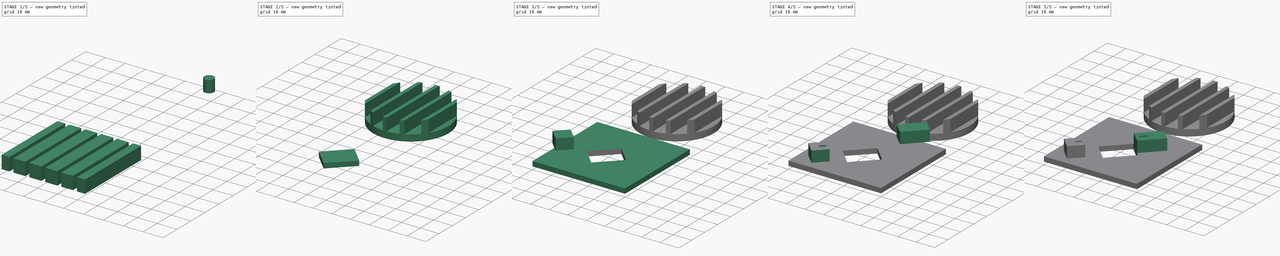
[diagram: build sequence overview — one tinted view per stage of 5, left to right]
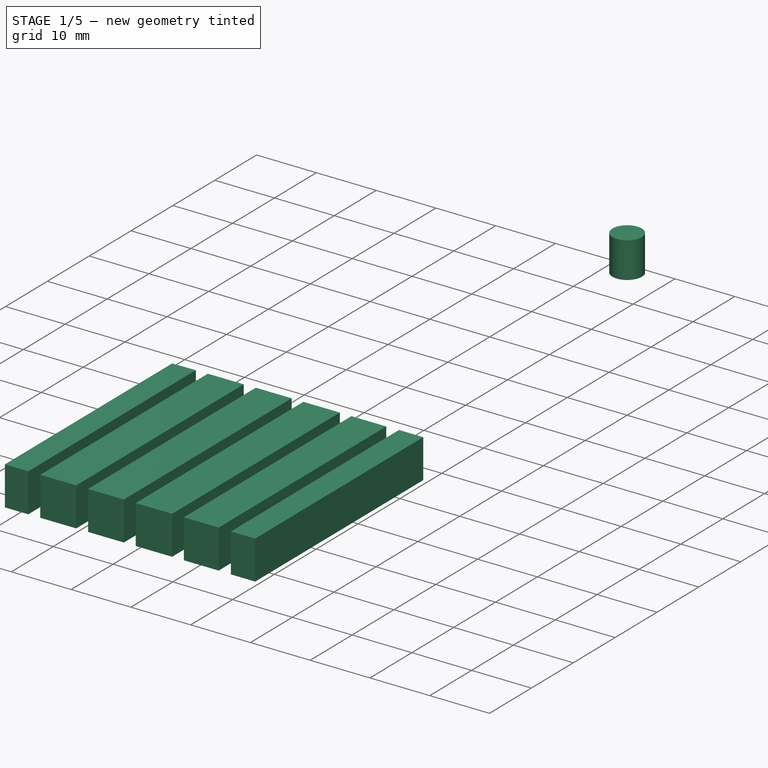
[diagram: stage 1 of 5 — iso view after this stage's code; geometry added in this stage tinted green]
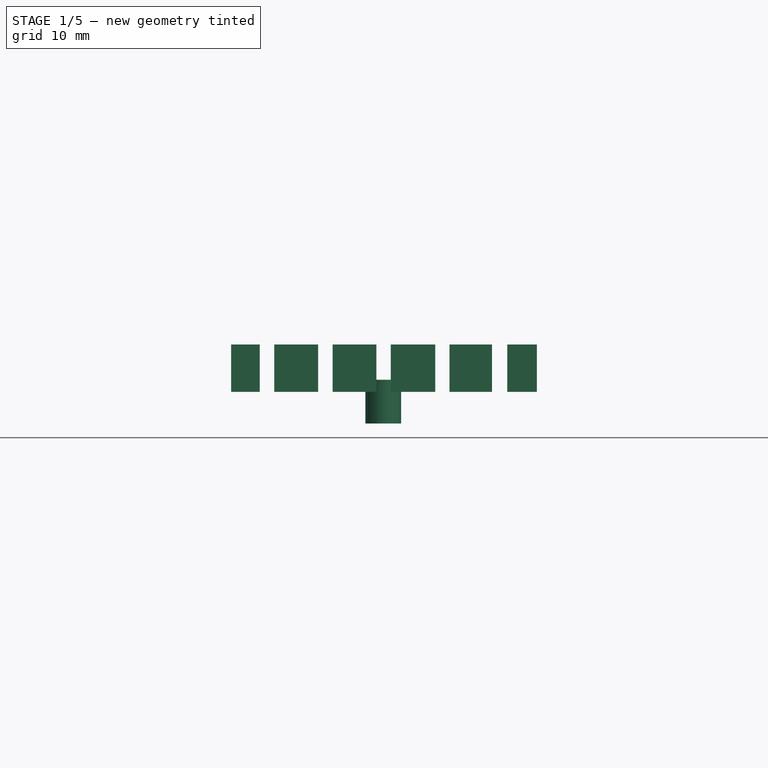
[diagram: stage 1 of 5 — front view after this stage's code; geometry added in this stage tinted green]
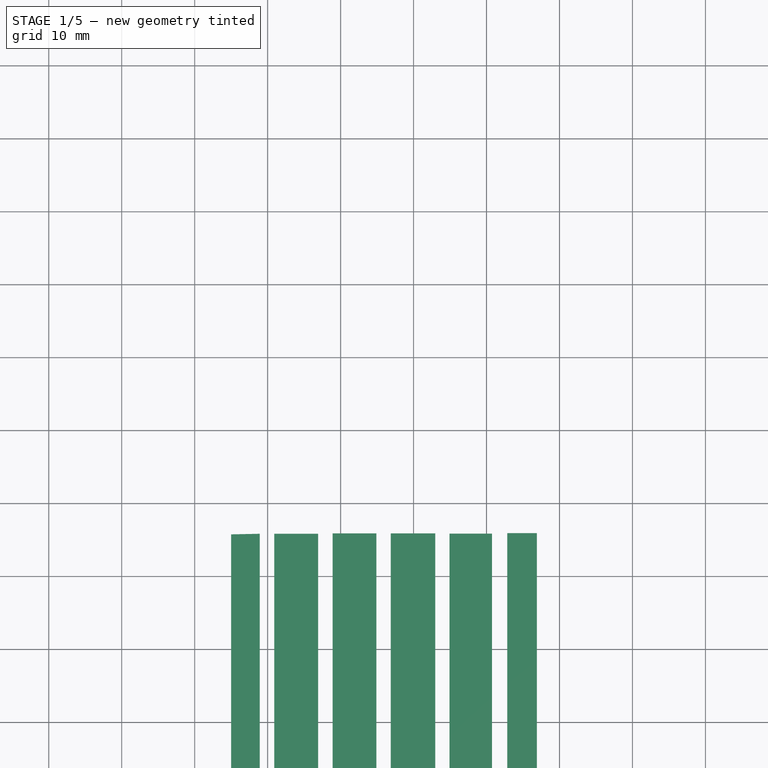
[diagram: stage 1 of 5 — top view after this stage's code; geometry added in this stage tinted green]
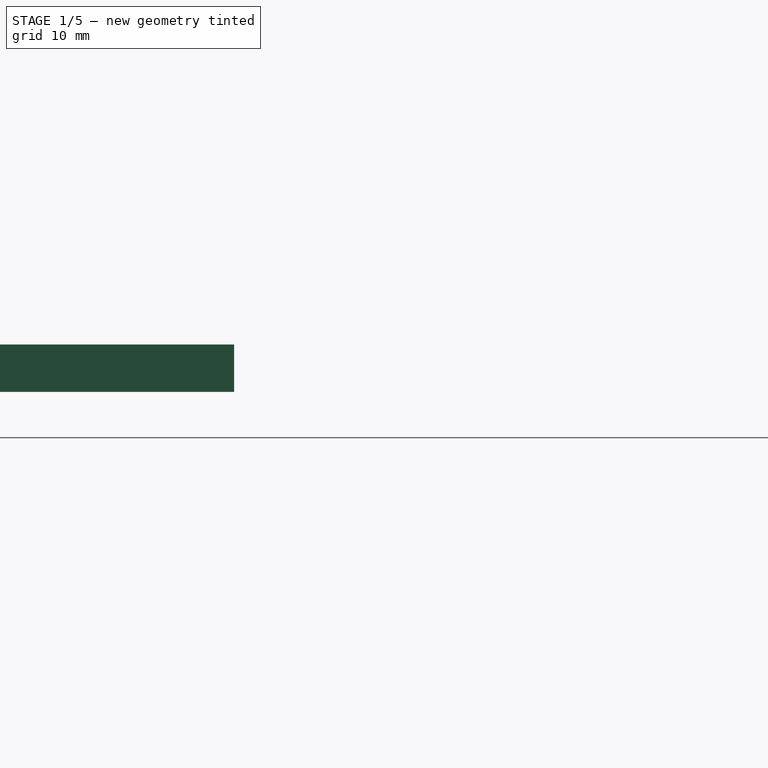
[diagram: stage 1 of 5 — right view after this stage's code; geometry added in this stage tinted green]
FCSTD DOCUMENT  (FreeCAD 0.21R33694 (Git))
Label: new_wall_maze_v13
License: All rights reserved
LicenseURL: https://en.wikipedia.org/wiki/All_rights_reserved
objects: Part::Cut×5, Part::Box×4, Sketcher::SketchObject×4, Part::Extrusion×4, Part::Cylinder×1, Part::MultiFuse×1
note: 19 computed .brp shape members not serialized (recipe doc carries the construction recipe); baked Part::Feature solids carry a one-line shape summary decoded from their .brp

FEATURE [Part::Cylinder] Cylinder001
  Angle = 360
  AttacherType = Attacher::AttachEngine3D
  FirstAngle = 0
  Height = 10
  Placement = pos=(25.88,-24.43,1.58) rot=(0,0,1;0rad)
  Radius = 20
  SecondAngle = 0
FEATURE [Sketcher::SketchObject] Sketch001
  FullyConstrained = false
  MapMode = 2
  Placement = pos=(25.88,-24.43,1.58) rot=(0,0,1;0rad)
  Support = -> [Cylinder001]
  sketch-geometry (24):
    g0: LineSegment StartX=0.997806 StartY=-19.954 StartZ=0 EndX=7.08607 EndY=-19.954 EndZ=0
    g1: LineSegment StartX=7.08607 StartY=-19.954 StartZ=0 EndX=7.08607 EndY=20.1182 EndZ=0
    g2: LineSegment StartX=7.08607 StartY=20.1182 StartZ=0 EndX=0.997806 EndY=20.1182 EndZ=0
    g3: LineSegment StartX=0.997806 StartY=20.1182 StartZ=0 EndX=0.997806 EndY=-19.954 EndZ=0
    g4: LineSegment StartX=9.0524 StartY=-19.954 StartZ=0 EndX=14.8749 EndY=-19.954 EndZ=0
    g5: LineSegment StartX=14.8749 StartY=-19.954 StartZ=0 EndX=14.8749 EndY=20.084 EndZ=0
    g6: LineSegment StartX=14.8749 StartY=20.084 StartZ=0 EndX=9.0524 EndY=20.084 EndZ=0
    g7: LineSegment StartX=9.0524 StartY=20.084 StartZ=0 EndX=9.0524 EndY=-19.954 EndZ=0
    g8: LineSegment StartX=-0.983581 StartY=-19.954 StartZ=0 EndX=-6.97504 EndY=-19.954 EndZ=0
    g9: LineSegment StartX=-6.97504 StartY=-19.954 StartZ=0 EndX=-6.97504 EndY=20.1272 EndZ=0
    g10: LineSegment StartX=-6.97504 StartY=20.1272 StartZ=0 EndX=-0.983581 EndY=20.1272 EndZ=0
    g11: LineSegment StartX=-0.983581 StartY=20.1272 StartZ=0 EndX=-0.983581 EndY=-19.954 EndZ=0
    g12: LineSegment StartX=-8.96314 StartY=-19.954 StartZ=0 EndX=-14.9716 EndY=-19.954 EndZ=0
    g13: LineSegment StartX=-14.9716 StartY=-19.954 StartZ=0 EndX=-14.9716 EndY=20.0763 EndZ=0
    g14: LineSegment StartX=-14.9716 StartY=20.0763 StartZ=0 EndX=-8.96314 EndY=20.0763 EndZ=0
    g15: LineSegment StartX=-8.96314 StartY=20.0763 StartZ=0 EndX=-8.96314 EndY=-19.954 EndZ=0
    g16: LineSegment StartX=16.9644 StartY=20.1567 StartZ=0 EndX=21.0191 EndY=20.1567 EndZ=0
    g17: LineSegment StartX=21.0191 StartY=20.1567 StartZ=0 EndX=21.0191 EndY=-20.0109 EndZ=0
    g18: LineSegment StartX=21.0191 StartY=-20.0109 StartZ=0 EndX=16.9644 EndY=-20.0109 EndZ=0
    g19: LineSegment StartX=16.9644 StartY=-20.0109 StartZ=0 EndX=16.9644 EndY=20.1567 EndZ=0
    g20: LineSegment StartX=-16.9652 StartY=20.0719 StartZ=0 EndX=-16.9652 EndY=-19.9718 EndZ=0
    g21: LineSegment StartX=-16.9652 StartY=-19.9718 StartZ=0 EndX=-20.8833 EndY=-19.9718 EndZ=0
    g22: LineSegment StartX=-20.8833 StartY=-19.9718 StartZ=0 EndX=-20.8833 EndY=19.9916 EndZ=0
    g23: LineSegment StartX=-20.8833 StartY=19.9916 StartZ=0 EndX=-16.9652 EndY=20.0719 EndZ=0
  constraints (47):
    c: Coincident(g0,g1)
    c: Coincident(g1,g2)
    c: Coincident(g2,g3)
    c: Coincident(g3,g0)
    c: Horizontal(g0)
    c: Horizontal(g2)
    c: Vertical(g1)
    c: Vertical(g3)
    c: Coincident(g4,g5)
    c: Coincident(g5,g6)
    c: Coincident(g6,g7)
    c: Coincident(g7,g4)
    c: Horizontal(g4)
    c: Horizontal(g6)
    c: Vertical(g5)
    c: Vertical(g7)
    c: Coincident(g8,g9)
    c: Coincident(g9,g10)
    c: Coincident(g10,g11)
    c: Coincident(g11,g8)
    c: Horizontal(g8)
    c: Horizontal(g10)
    c: Vertical(g9)
    c: Vertical(g11)
    c: Coincident(g12,g13)
    c: Coincident(g13,g14)
    c: Coincident(g14,g15)
    c: Coincident(g15,g12)
    c: Horizontal(g12)
    c: Horizontal(g14)
    c: Vertical(g13)
    c: Vertical(g15)
    c: Horizontal(g16)
    c: Coincident(g17,g16)
    c: Vertical(g17)
    c: Coincident(g18,g17)
    c: Horizontal(g18)
    c: Coincident(g19,g18)
    c: Coincident(g19,g16)
    c: Vertical(g19)
    c: Vertical(g20)
    c: Coincident(g21,g20)
    c: Horizontal(g21)
    c: Coincident(g22,g21)
    c: Vertical(g22)
    c: Coincident(g23,g22)
    c: Coincident(g23,g20)
FEATURE [Part::Extrusion] Extrude
  Base = -> Sketch001
  Dir = (0,0,1)
  DirMode = 2
  FaceMakerClass = Part::FaceMakerBullseye
  LengthFwd = 6.5
  LengthRev = 0
  Solid = true
  Symmetric = false
FEATURE [Part::Extrusion] Extrude001
  Base = -> Sketch002
  Dir = (0,0,1)
  DirMode = 2
  FaceMakerClass = Part::FaceMakerBullseye
  LengthFwd = 6
  LengthRev = 0
  Placement = pos=(0,0,-2.75) rot=(0,0,1;0rad)
  Solid = true
  Symmetric = false
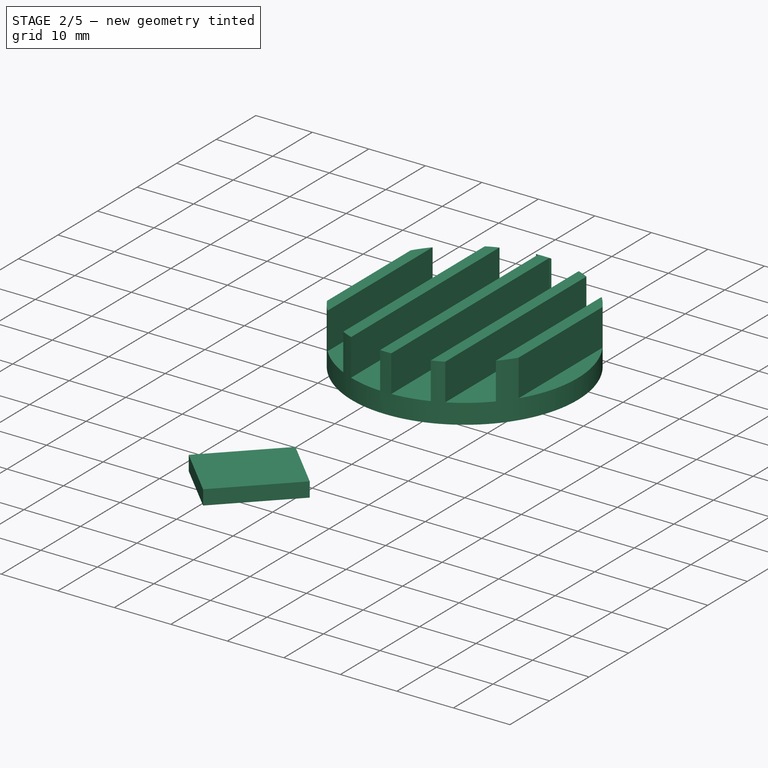
[diagram: stage 2 of 5 — iso view after this stage's code; geometry added in this stage tinted green]
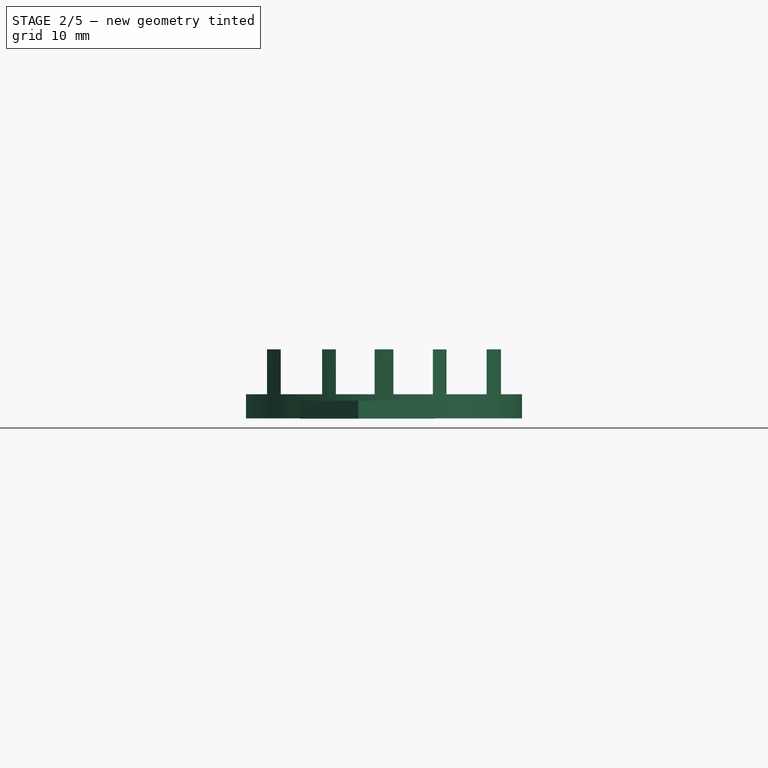
[diagram: stage 2 of 5 — front view after this stage's code; geometry added in this stage tinted green]
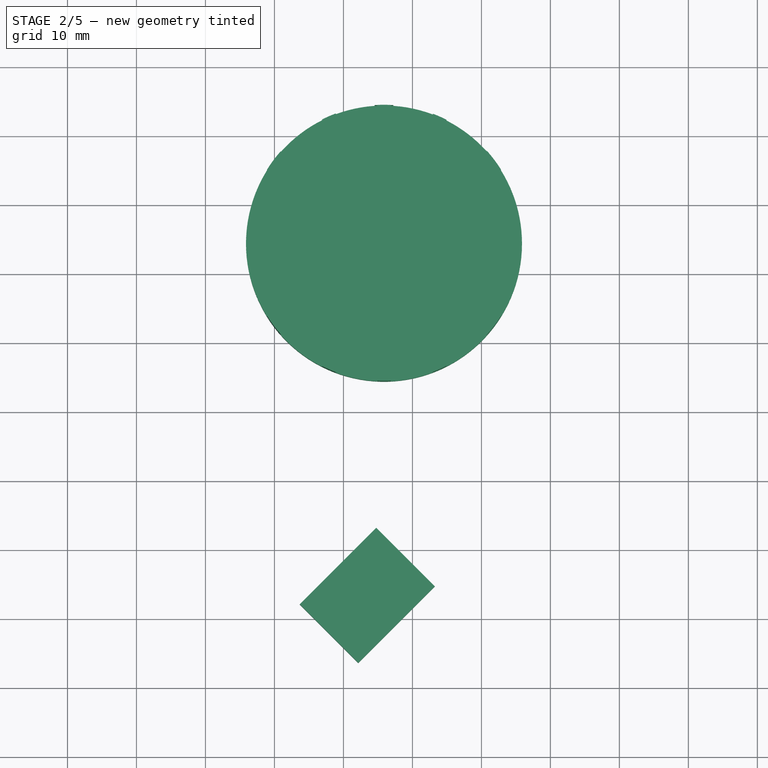
[diagram: stage 2 of 5 — top view after this stage's code; geometry added in this stage tinted green]
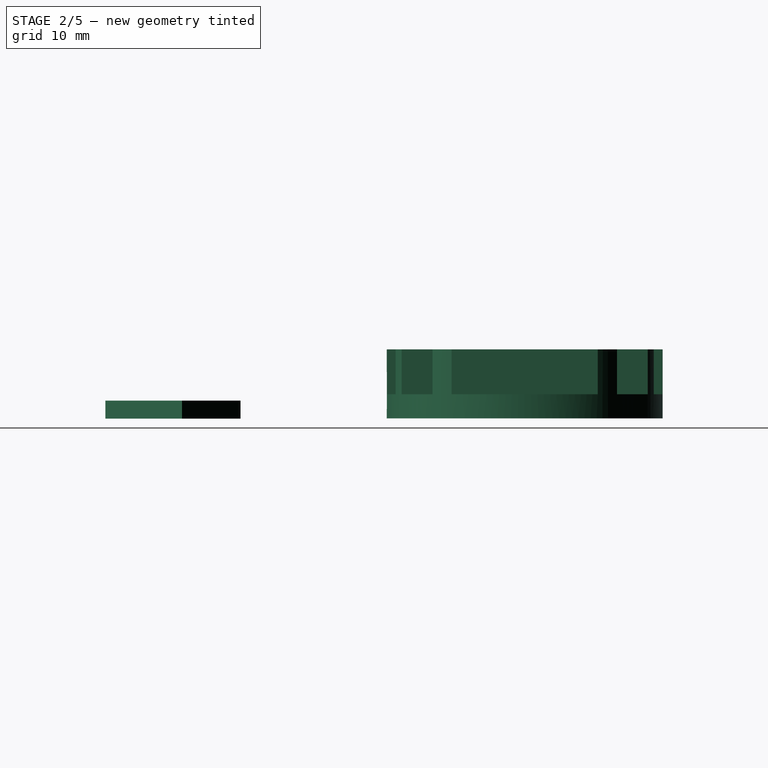
[diagram: stage 2 of 5 — right view after this stage's code; geometry added in this stage tinted green]
FEATURE [Part::Cut] Cut001
  Base = -> Cylinder001
  Placement = pos=(0,50,12) rot=(1,0,0;3.14159rad)
  Tool = -> Extrude
FEATURE [Part::Box] Box005  label="Cube005"
  AttacherType = Attacher::AttachEngine3D
  Height = 2.6
  Length = 15.7
  Placement = pos=(22.1464,13.6464,0) rot=(0,0,1;0.785398rad)
  Width = 12
FEATURE [Part::Cut] Cut005
  Base = -> Cut001
  Placement = pos=(0,0,-0.4) rot=(0,0,1;0rad)
  Tool = -> Extrude001
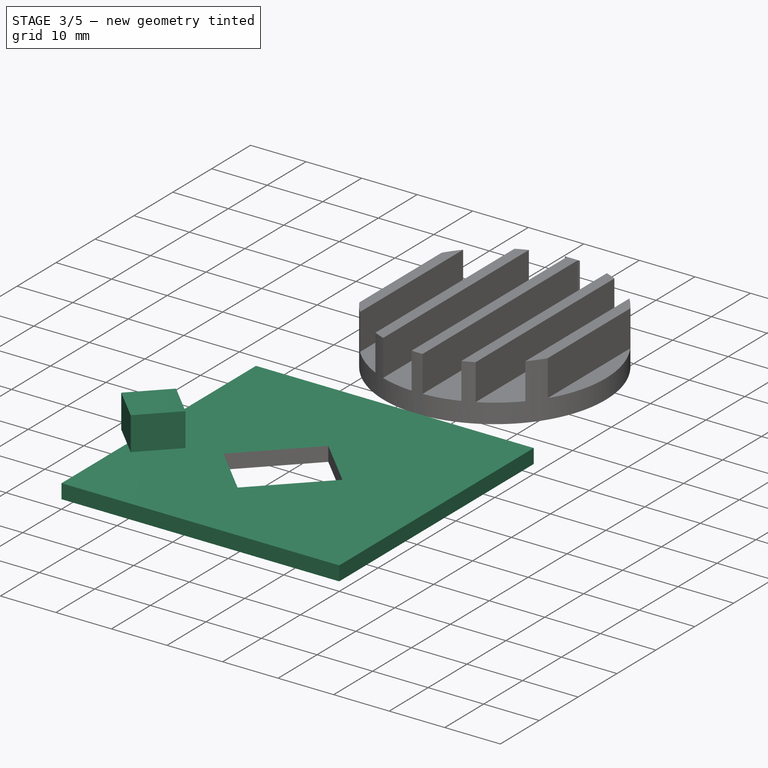
[diagram: stage 3 of 5 — iso view after this stage's code; geometry added in this stage tinted green]
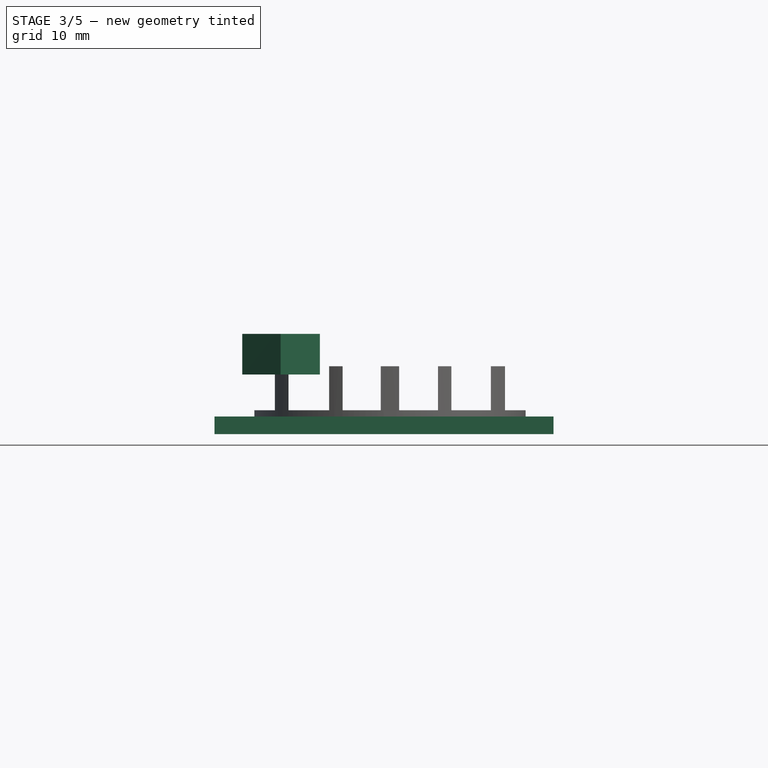
[diagram: stage 3 of 5 — front view after this stage's code; geometry added in this stage tinted green]
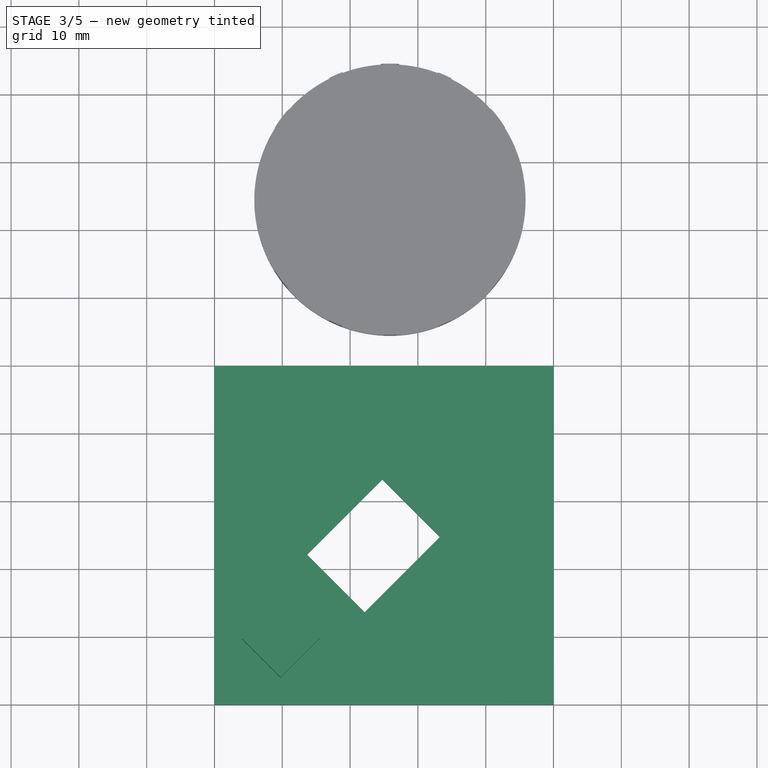
[diagram: stage 3 of 5 — top view after this stage's code; geometry added in this stage tinted green]
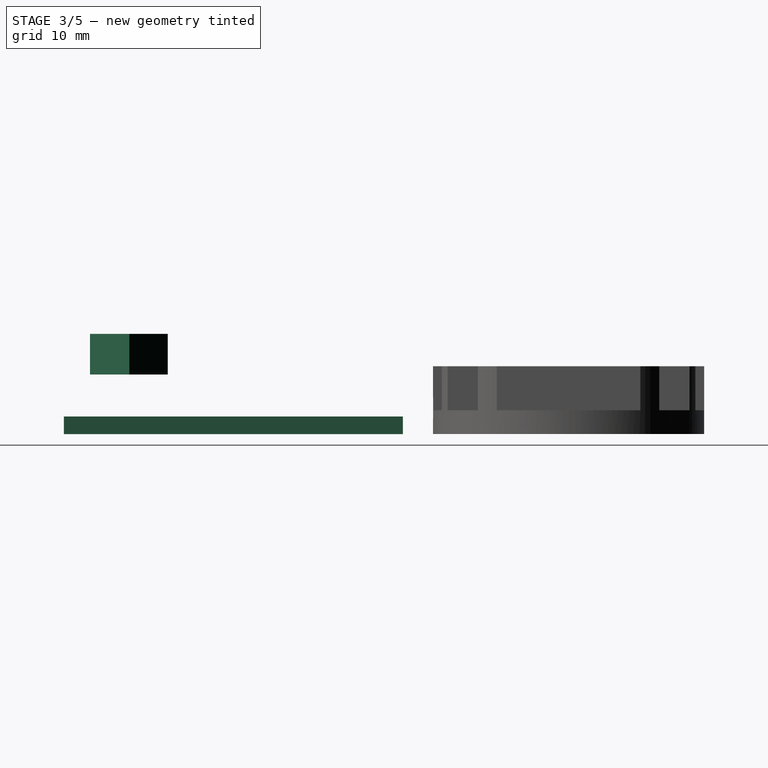
[diagram: stage 3 of 5 — right view after this stage's code; geometry added in this stage tinted green]
FEATURE [Part::Box] Box  label="Cube"
  AttacherType = Attacher::AttachEngine3D
  Height = 2.6
  Length = 50
  Width = 50
FEATURE [Sketcher::SketchObject] Sketch002
  FullyConstrained = false
  sketch-geometry (1):
    g0: Circle CenterX=25.8418 CenterY=74.5246 CenterZ=0 NormalX=0 NormalY=0 NormalZ=1 AngleXU=0 Radius=2.45
  constraints (1):
    c: Radius(g0) = 2.45
FEATURE [Part::Box] Box003  label="Cube003"
  AttacherType = Attacher::AttachEngine3D
  Height = 6
  Length = 8
  Placement = pos=(15.55,9.66,8.79) rot=(0,0,1;2.35619rad)
  Width = 8.2
FEATURE [Part::Cut] Cut
  Base = -> Box
  Tool = -> Box005
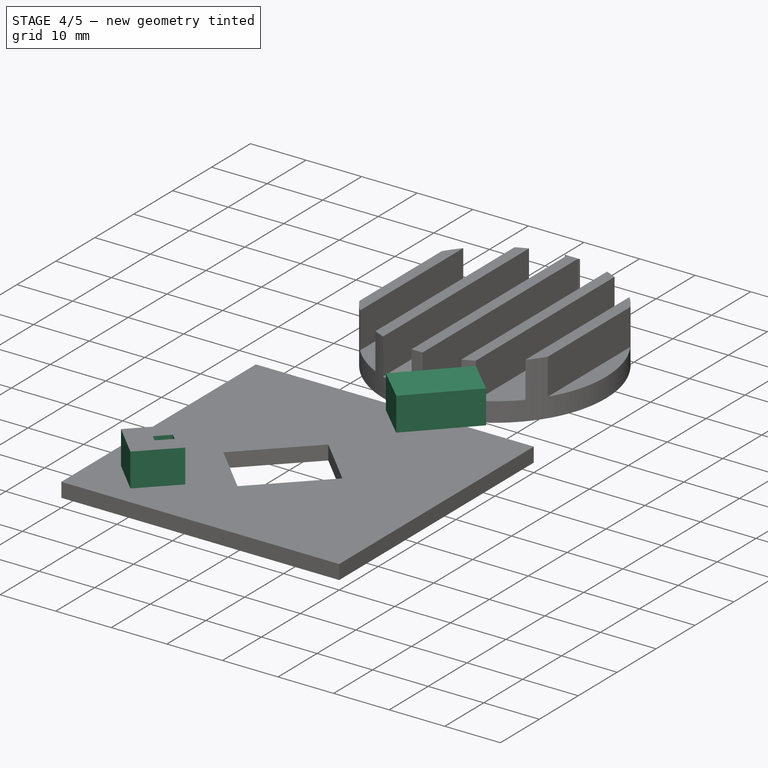
[diagram: stage 4 of 5 — iso view after this stage's code; geometry added in this stage tinted green]
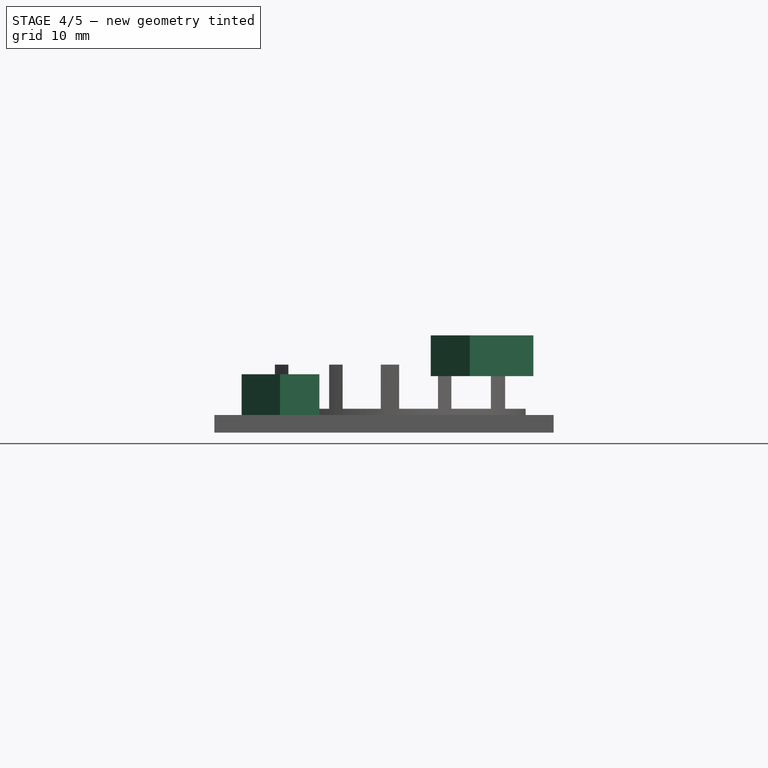
[diagram: stage 4 of 5 — front view after this stage's code; geometry added in this stage tinted green]
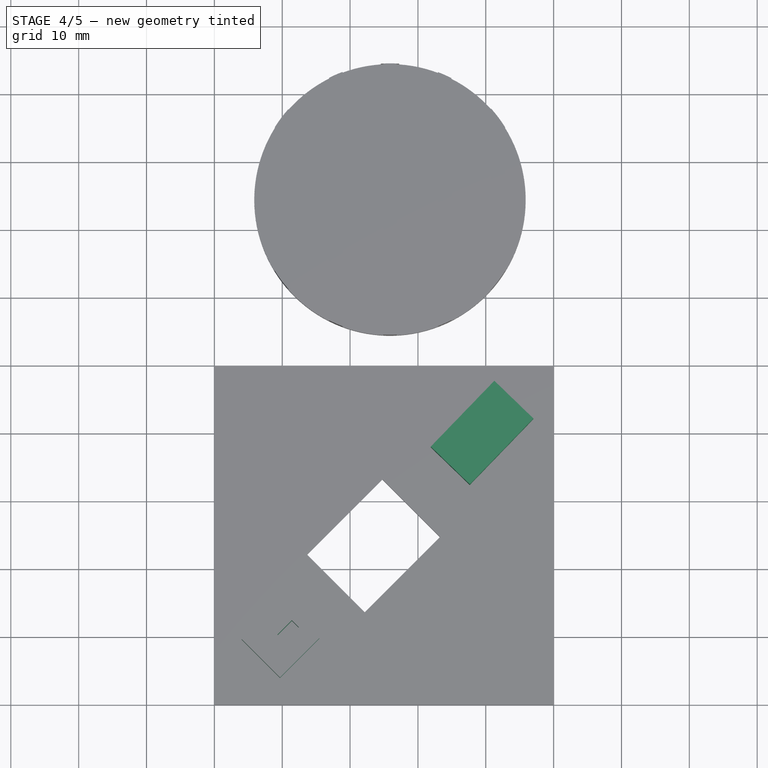
[diagram: stage 4 of 5 — top view after this stage's code; geometry added in this stage tinted green]
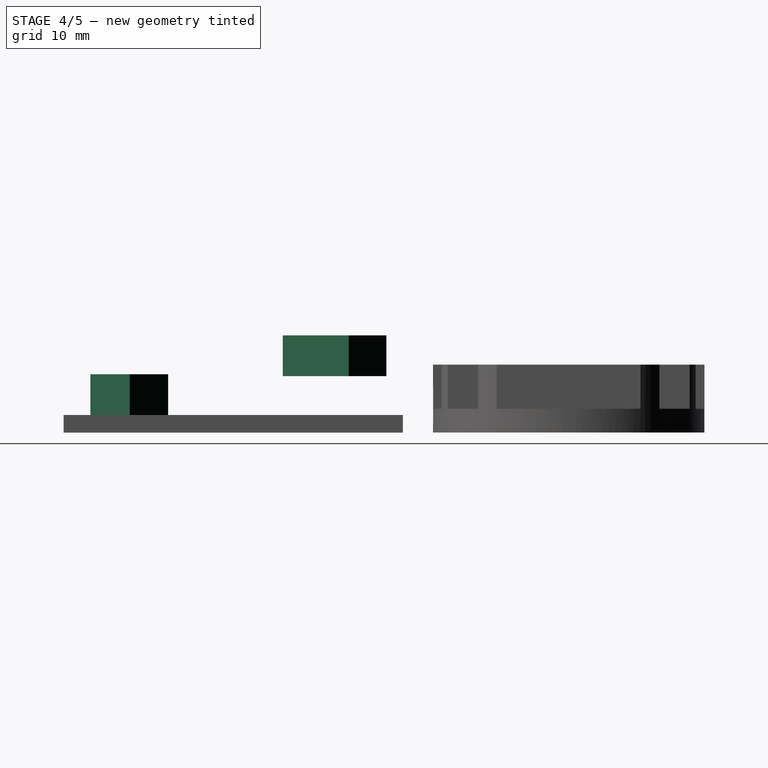
[diagram: stage 4 of 5 — right view after this stage's code; geometry added in this stage tinted green]
FEATURE [Part::Box] Box004  label="Cube004"
  AttacherType = Attacher::AttachEngine3D
  Height = 6
  Length = 8
  Placement = pos=(47.02,42.01,8.32) rot=(0,0,1;2.37365rad)
  Width = 13.5
FEATURE [Sketcher::SketchObject] Sketch006
  FullyConstrained = false
  MapMode = 5
  Placement = pos=(15.55,9.66,14.79) rot=(0,0,1;2.35619rad)
  Support = -> [Box003]
  sketch-geometry (4):
    g0: LineSegment StartX=3.25305 StartY=4.01879 StartZ=0 EndX=4.71741 EndY=4.01879 EndZ=0
    g1: LineSegment StartX=4.71741 StartY=4.01879 StartZ=0 EndX=4.71741 EndY=1.00337 EndZ=0
    g2: LineSegment StartX=4.71741 StartY=1.00337 StartZ=0 EndX=3.25305 EndY=1.00337 EndZ=0
    g3: LineSegment StartX=3.25305 StartY=1.00337 StartZ=0 EndX=3.25305 EndY=4.01879 EndZ=0
  constraints (8):
    c: Coincident(g0,g1)
    c: Coincident(g1,g2)
    c: Coincident(g2,g3)
    c: Coincident(g3,g0)
    c: Horizontal(g0)
    c: Horizontal(g2)
    c: Vertical(g1)
    c: Vertical(g3)
FEATURE [Part::Extrusion] Extrude003
  Base = -> Sketch006
  Dir = (0,0,1)
  DirMode = 2
  FaceMakerClass = Part::FaceMakerBullseye
  LengthFwd = 4.5
  LengthRev = 2
  Placement = pos=(0,0,-4.5) rot=(0,0,1;0rad)
  Solid = true
  Symmetric = false
FEATURE [Part::Cut] Cut004
  Base = -> Box003
  Placement = pos=(-0.08085,0.07824,-6.2) rot=(0,0,1;0rad)
  Tool = -> Extrude003
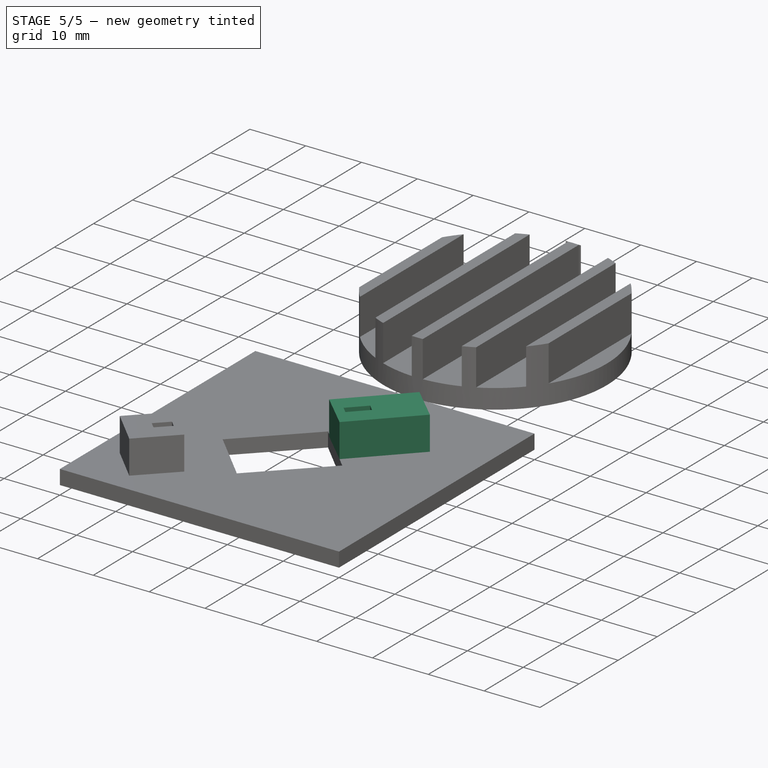
[diagram: stage 5 of 5 — iso view after this stage's code; geometry added in this stage tinted green]
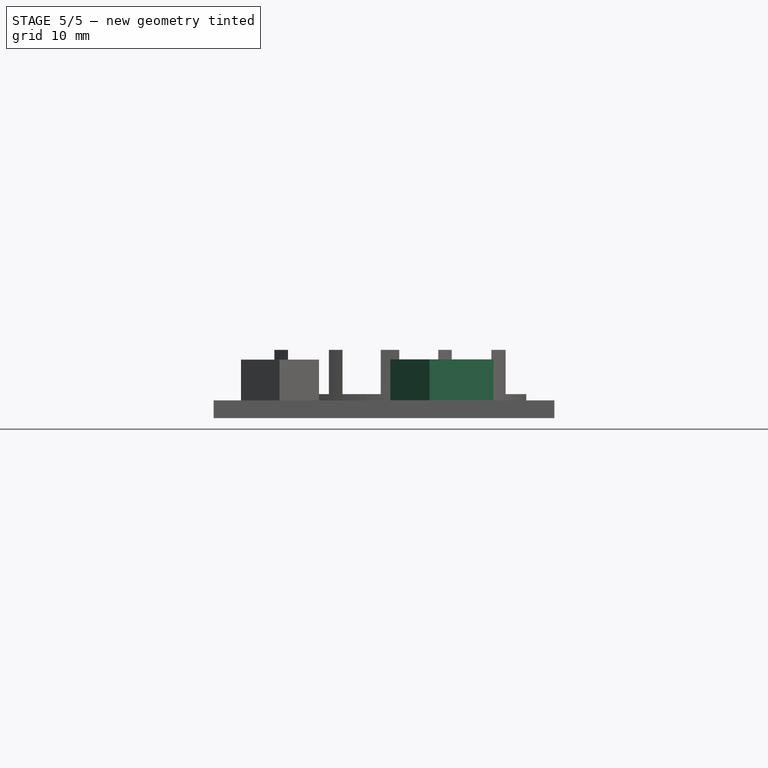
[diagram: stage 5 of 5 — front view after this stage's code; geometry added in this stage tinted green]
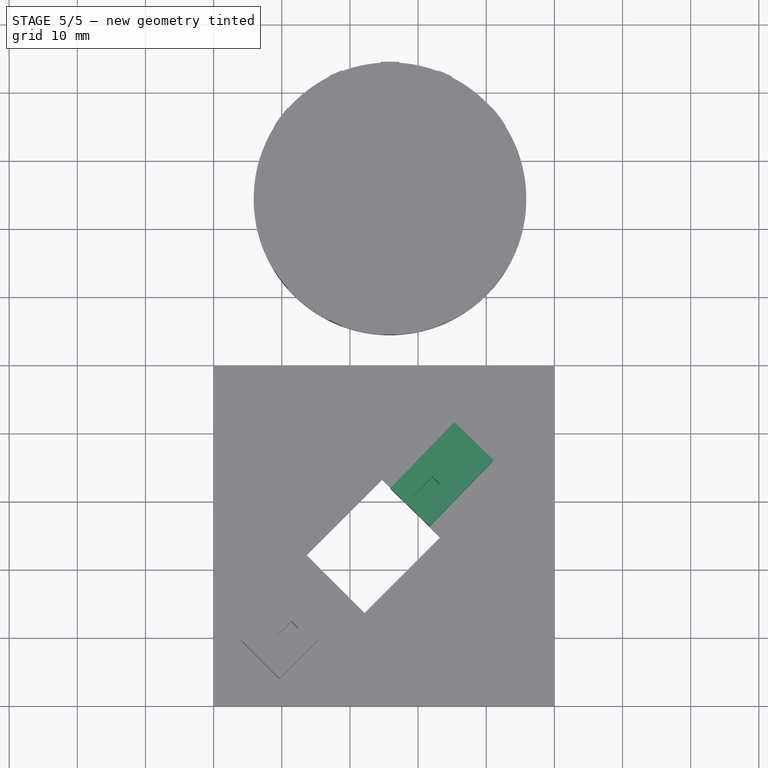
[diagram: stage 5 of 5 — top view after this stage's code; geometry added in this stage tinted green]
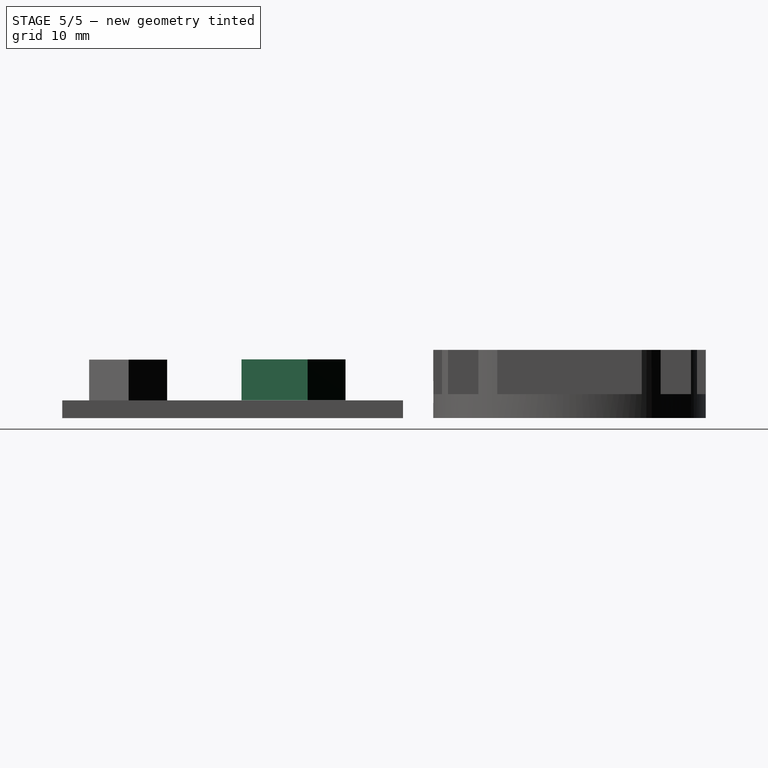
[diagram: stage 5 of 5 — right view after this stage's code; geometry added in this stage tinted green]
FEATURE [Sketcher::SketchObject] Sketch005
  FullyConstrained = false
  MapMode = 5
  Placement = pos=(47.02,42.01,14.32) rot=(0,0,1;2.37365rad)
  Support = -> [Box004]
  sketch-geometry (4):
    g0: LineSegment StartX=3.25265 StartY=11.986 StartZ=0 EndX=4.75178 EndY=11.986 EndZ=0
    g1: LineSegment StartX=4.75178 StartY=11.986 StartZ=0 EndX=4.75178 EndY=8.00235 EndZ=0
    g2: LineSegment StartX=4.75178 StartY=8.00235 StartZ=0 EndX=3.25265 EndY=8.00235 EndZ=0
    g3: LineSegment StartX=3.25265 StartY=8.00235 StartZ=0 EndX=3.25265 EndY=11.986 EndZ=0
  constraints (8):
    c: Coincident(g0,g1)
    c: Coincident(g1,g2)
    c: Coincident(g2,g3)
    c: Coincident(g3,g0)
    c: Horizontal(g0)
    c: Horizontal(g2)
    c: Vertical(g1)
    c: Vertical(g3)
FEATURE [Part::Extrusion] Extrude002
  Base = -> Sketch005
  Dir = (0,0,1)
  DirMode = 2
  FaceMakerClass = Part::FaceMakerBullseye
  LengthFwd = 4.5
  LengthRev = 1
  Placement = pos=(0,0,-4.5) rot=(0,0,1;0rad)
  Solid = true
  Symmetric = false
FEATURE [Part::Cut] Cut003
  Base = -> Box004
  Placement = pos=(-5.96,-6,-5.7) rot=(0,0,1;0rad)
  Tool = -> Extrude002
FEATURE [Part::MultiFuse] Fusion
  Shapes = -> [Cut003,Cut004,Cut]
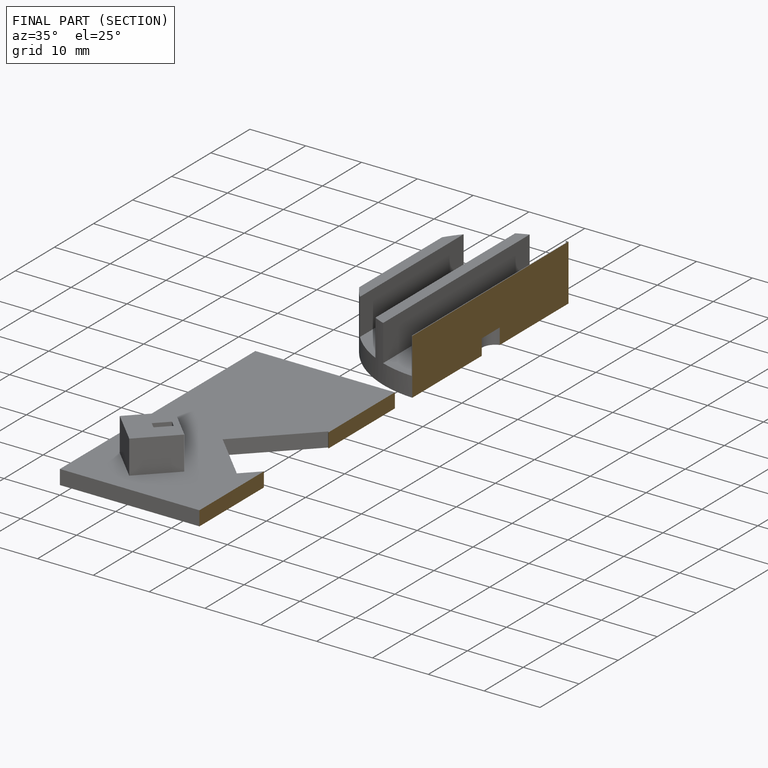
[diagram: finished part — half-section view (interior)]
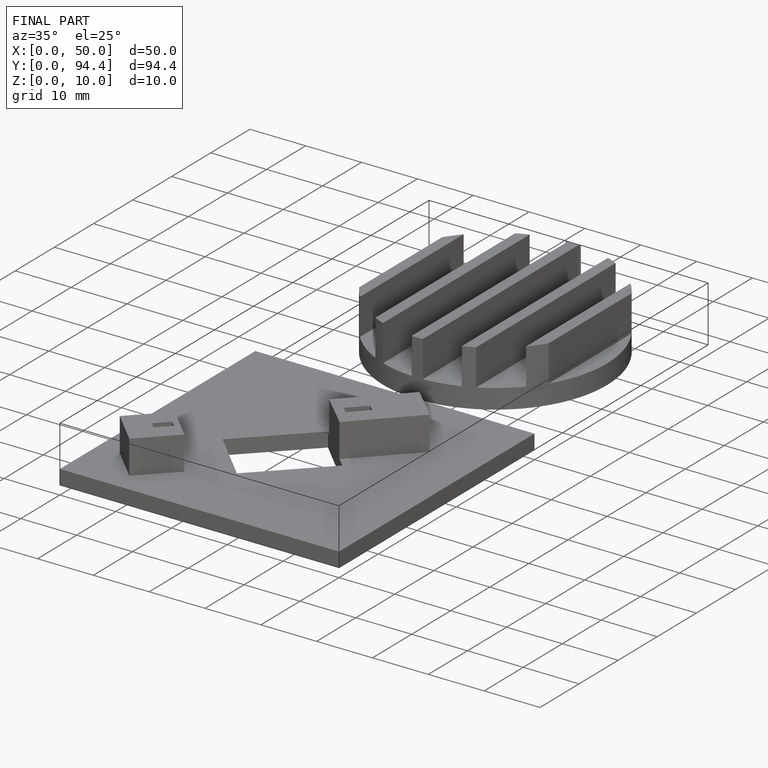
[diagram: finished part — iso view with bounding-box wireframe]
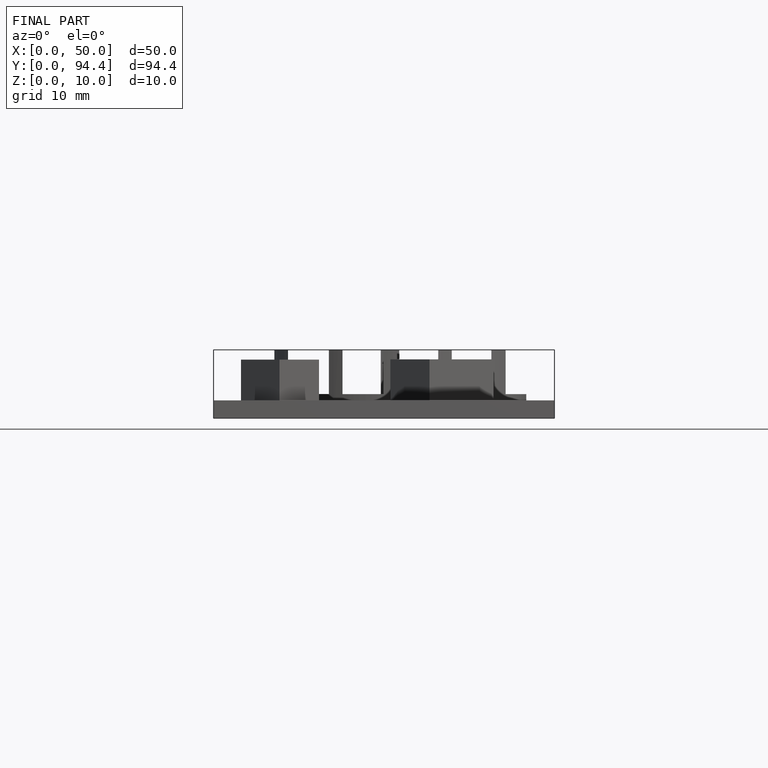
[diagram: finished part — front view with bounding-box wireframe]
